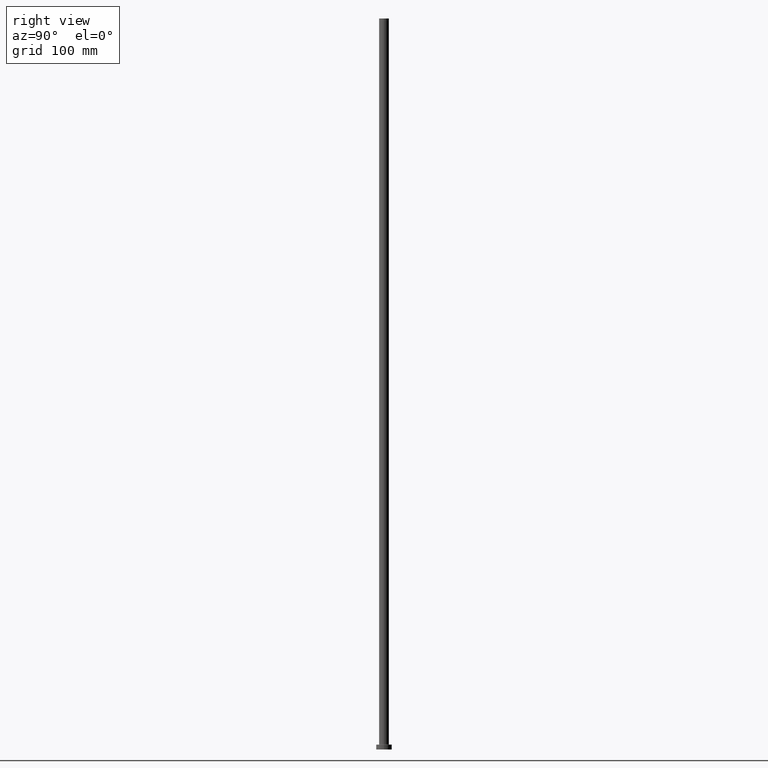
[diagram: clean part render]
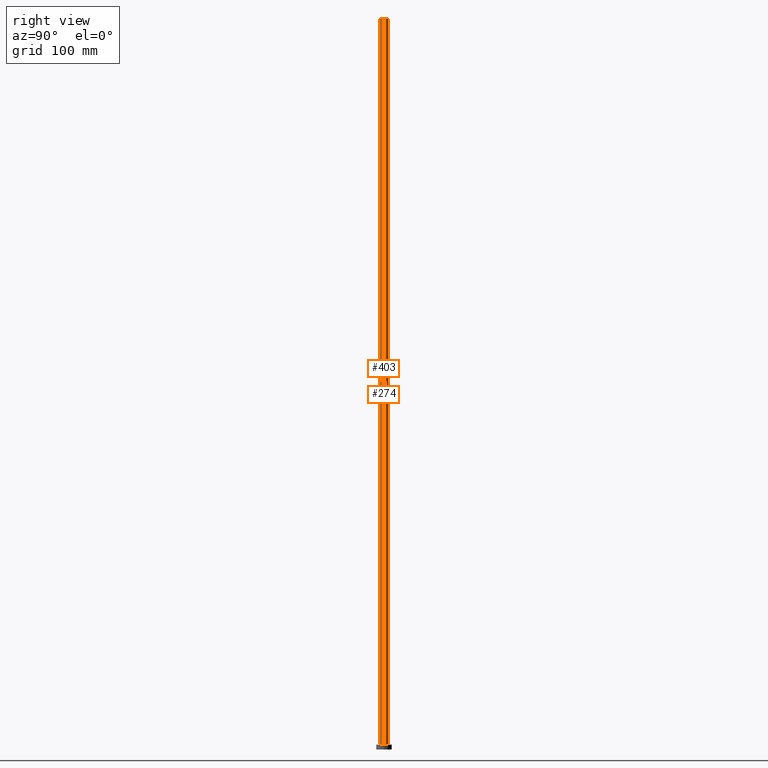
[diagram: same view with one multi-face feature highlighted, each face labeled with its STEP entity id]
A machine part, right view. The highlighted faces form ONE feature: a constant-radius fillet chain: 2 tangent blend faces with common blend radius 5 mm. The faces share edges in the B-rep.
Their STEP definitions:
[1] entity #403 (Cylinder):
#8 = ORIENTED_EDGE ( 'NONE', *, *, #450, .F. ) ;
#10 = DIRECTION ( 'NONE',  ( -0.000000000000000000, -0.000000000000000000, -1.000000000000000000 ) ) ;
#13 = EDGE_CURVE ( 'NONE', #37, #252, #260, .T. ) ;
#37 = VERTEX_POINT ( 'NONE', #220 ) ;
#39 = EDGE_CURVE ( 'NONE', #44, #135, #42, .T. ) ;
#42 = LINE ( 'NONE', #183, #361 ) ;
#43 = CARTESIAN_POINT ( 'NONE',  ( -5.000000000000000000, 0.000000000000000000, 5.499999999999949374 ) ) ;
#44 = VERTEX_POINT ( 'NONE', #186 ) ;
#67 = CARTESIAN_POINT ( 'NONE',  ( 5.000000000000000000, 6.123233995736766282E-16, 5.499999999999949374 ) ) ;
#68 = ORIENTED_EDGE ( 'NONE', *, *, #39, .F. ) ;
#74 = AXIS2_PLACEMENT_3D ( 'NONE', #97, #275, #95 ) ;
#95 = DIRECTION ( 'NONE',  ( 1.000000000000000000, 0.000000000000000000, 0.000000000000000000 ) ) ;
#97 = CARTESIAN_POINT ( 'NONE',  ( 0.000000000000000000, 0.000000000000000000, 750.0000000000000000 ) ) ;
#100 = DIRECTION ( 'NONE',  ( 1.000000000000000000, 0.000000000000000000, 0.000000000000000000 ) ) ;
#107 = AXIS2_PLACEMENT_3D ( 'NONE', #120, #235, #339 ) ;
#111 = ORIENTED_EDGE ( 'NONE', *, *, #418, .T. ) ;
#120 = CARTESIAN_POINT ( 'NONE',  ( 0.000000000000000000, 0.000000000000000000, 750.0000000000000000 ) ) ;
#135 = VERTEX_POINT ( 'NONE', #67 ) ;
#161 = FACE_OUTER_BOUND ( 'NONE', #451, .T. ) ;
#172 = CIRCLE ( 'NONE', #74, 5.000000000000000000 ) ;
#183 = CARTESIAN_POINT ( 'NONE',  ( 5.000000000000000000, 6.123233995736766282E-16, 750.0000000000000000 ) ) ;
#186 = CARTESIAN_POINT ( 'NONE',  ( 5.000000000000000000, 6.123233995736766282E-16, 750.0000000000000000 ) ) ;
#220 = CARTESIAN_POINT ( 'NONE',  ( -5.000000000000000000, 0.000000000000000000, 750.0000000000000000 ) ) ;
#235 = DIRECTION ( 'NONE',  ( -0.000000000000000000, -0.000000000000000000, -1.000000000000000000 ) ) ;
#252 = VERTEX_POINT ( 'NONE', #43 ) ;
#260 = LINE ( 'NONE', #362, #352 ) ;
#275 = DIRECTION ( 'NONE',  ( 0.000000000000000000, 0.000000000000000000, 1.000000000000000000 ) ) ;
#299 = CARTESIAN_POINT ( 'NONE',  ( 0.000000000000000000, 0.000000000000000000, 5.499999999999949374 ) ) ;
#322 = DIRECTION ( 'NONE',  ( -0.000000000000000000, -0.000000000000000000, -1.000000000000000000 ) ) ;
#339 = DIRECTION ( 'NONE',  ( -1.000000000000000000, 0.000000000000000000, 0.000000000000000000 ) ) ;
#352 = VECTOR ( 'NONE', #10, 1000.000000000000000 ) ;
#354 = ORIENTED_EDGE ( 'NONE', *, *, #13, .T. ) ;
#361 = VECTOR ( 'NONE', #322, 1000.000000000000000 ) ;
#362 = CARTESIAN_POINT ( 'NONE',  ( -5.000000000000000000, 0.000000000000000000, 750.0000000000000000 ) ) ;
#370 = CIRCLE ( 'NONE', #431, 5.000000000000000000 ) ;
#403 = ADVANCED_FACE ( 'NONE', ( #161 ), #445, .T. ) ;
#418 = EDGE_CURVE ( 'NONE', #252, #135, #370, .T. ) ;
#431 = AXIS2_PLACEMENT_3D ( 'NONE', #299, #449, #100 ) ;
#445 = CYLINDRICAL_SURFACE ( 'NONE', #107, 5.000000000000000000 ) ;
#449 = DIRECTION ( 'NONE',  ( 0.000000000000000000, 0.000000000000000000, 1.000000000000000000 ) ) ;
#450 = EDGE_CURVE ( 'NONE', #37, #44, #172, .T. ) ;
#451 = EDGE_LOOP ( 'NONE', ( #68, #8, #354, #111 ) ) ;
[2] entity #274 (Cylinder):
#4 = EDGE_CURVE ( 'NONE', #135, #252, #195, .T. ) ;
#10 = DIRECTION ( 'NONE',  ( -0.000000000000000000, -0.000000000000000000, -1.000000000000000000 ) ) ;
#11 = EDGE_LOOP ( 'NONE', ( #399, #104, #349, #459 ) ) ;
#13 = EDGE_CURVE ( 'NONE', #37, #252, #260, .T. ) ;
#29 = AXIS2_PLACEMENT_3D ( 'NONE', #87, #54, #325 ) ;
#37 = VERTEX_POINT ( 'NONE', #220 ) ;
#39 = EDGE_CURVE ( 'NONE', #44, #135, #42, .T. ) ;
#42 = LINE ( 'NONE', #183, #361 ) ;
#43 = CARTESIAN_POINT ( 'NONE',  ( -5.000000000000000000, 0.000000000000000000, 5.499999999999949374 ) ) ;
#44 = VERTEX_POINT ( 'NONE', #186 ) ;
#54 = DIRECTION ( 'NONE',  ( 0.000000000000000000, 0.000000000000000000, 1.000000000000000000 ) ) ;
#67 = CARTESIAN_POINT ( 'NONE',  ( 5.000000000000000000, 6.123233995736766282E-16, 5.499999999999949374 ) ) ;
#81 = AXIS2_PLACEMENT_3D ( 'NONE', #262, #412, #229 ) ;
#85 = FACE_OUTER_BOUND ( 'NONE', #11, .T. ) ;
#87 = CARTESIAN_POINT ( 'NONE',  ( 0.000000000000000000, 0.000000000000000000, 5.499999999999949374 ) ) ;
#93 = DIRECTION ( 'NONE',  ( 1.000000000000000000, 0.000000000000000000, 0.000000000000000000 ) ) ;
#104 = ORIENTED_EDGE ( 'NONE', *, *, #39, .T. ) ;
#135 = VERTEX_POINT ( 'NONE', #67 ) ;
#183 = CARTESIAN_POINT ( 'NONE',  ( 5.000000000000000000, 6.123233995736766282E-16, 750.0000000000000000 ) ) ;
#186 = CARTESIAN_POINT ( 'NONE',  ( 5.000000000000000000, 6.123233995736766282E-16, 750.0000000000000000 ) ) ;
#195 = CIRCLE ( 'NONE', #29, 5.000000000000000000 ) ;
#220 = CARTESIAN_POINT ( 'NONE',  ( -5.000000000000000000, 0.000000000000000000, 750.0000000000000000 ) ) ;
#227 = CIRCLE ( 'NONE', #409, 5.000000000000000000 ) ;
#229 = DIRECTION ( 'NONE',  ( -1.000000000000000000, 0.000000000000000000, 0.000000000000000000 ) ) ;
#252 = VERTEX_POINT ( 'NONE', #43 ) ;
#260 = LINE ( 'NONE', #362, #352 ) ;
#262 = CARTESIAN_POINT ( 'NONE',  ( 0.000000000000000000, 0.000000000000000000, 750.0000000000000000 ) ) ;
#264 = CYLINDRICAL_SURFACE ( 'NONE', #81, 5.000000000000000000 ) ;
#274 = ADVANCED_FACE ( 'NONE', ( #85 ), #264, .T. ) ;
#322 = DIRECTION ( 'NONE',  ( -0.000000000000000000, -0.000000000000000000, -1.000000000000000000 ) ) ;
#325 = DIRECTION ( 'NONE',  ( 1.000000000000000000, 0.000000000000000000, 0.000000000000000000 ) ) ;
#346 = DIRECTION ( 'NONE',  ( 0.000000000000000000, 0.000000000000000000, 1.000000000000000000 ) ) ;
#349 = ORIENTED_EDGE ( 'NONE', *, *, #4, .T. ) ;
#352 = VECTOR ( 'NONE', #10, 1000.000000000000000 ) ;
#361 = VECTOR ( 'NONE', #322, 1000.000000000000000 ) ;
#362 = CARTESIAN_POINT ( 'NONE',  ( -5.000000000000000000, 0.000000000000000000, 750.0000000000000000 ) ) ;
#399 = ORIENTED_EDGE ( 'NONE', *, *, #423, .F. ) ;
#409 = AXIS2_PLACEMENT_3D ( 'NONE', #453, #346, #93 ) ;
#412 = DIRECTION ( 'NONE',  ( -0.000000000000000000, -0.000000000000000000, -1.000000000000000000 ) ) ;
#423 = EDGE_CURVE ( 'NONE', #44, #37, #227, .T. ) ;
#453 = CARTESIAN_POINT ( 'NONE',  ( 0.000000000000000000, 0.000000000000000000, 750.0000000000000000 ) ) ;
#459 = ORIENTED_EDGE ( 'NONE', *, *, #13, .F. ) ;